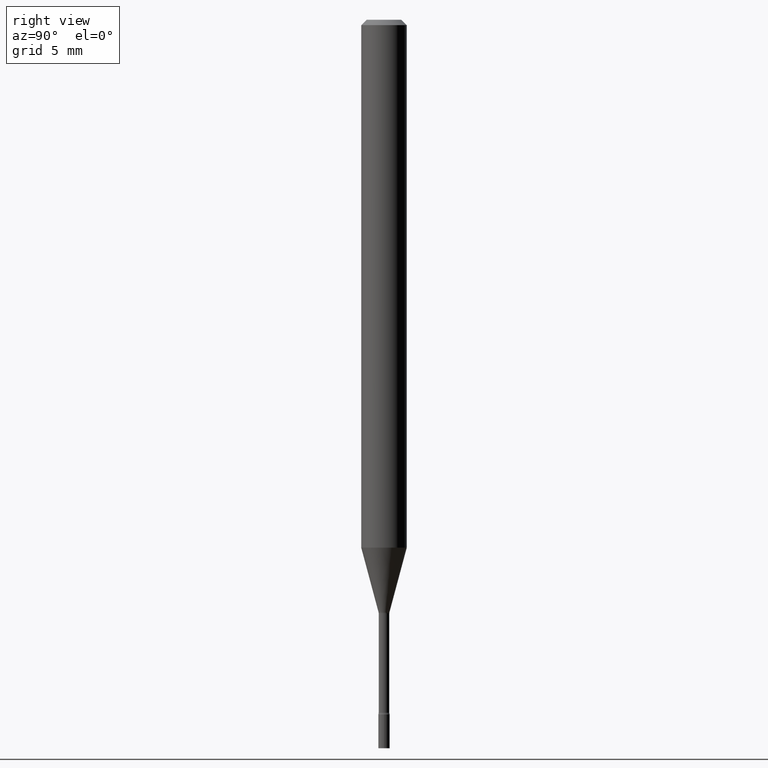
[diagram: clean part render]
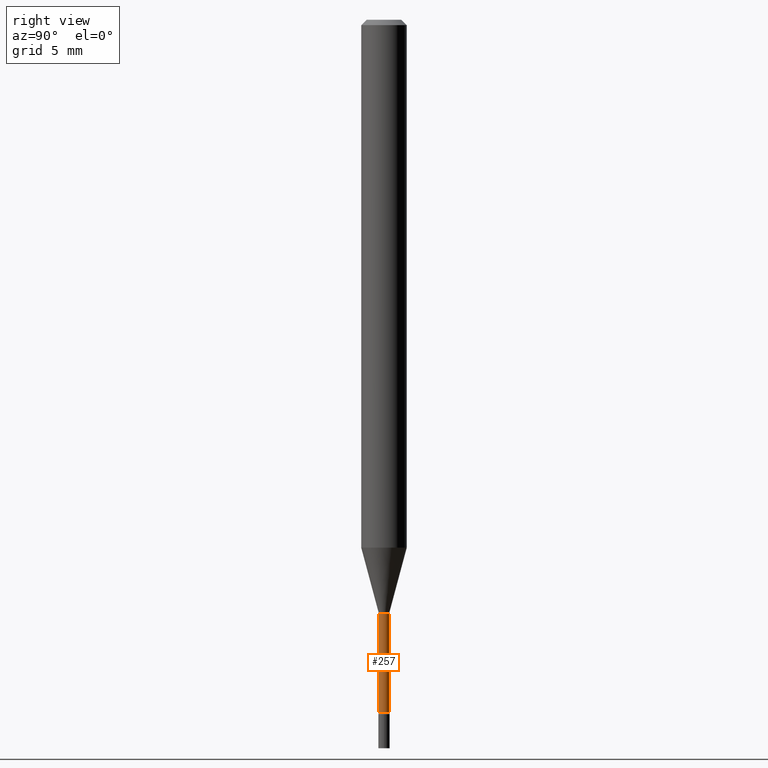
[diagram: same view with one face highlighted and labeled with its STEP entity id]
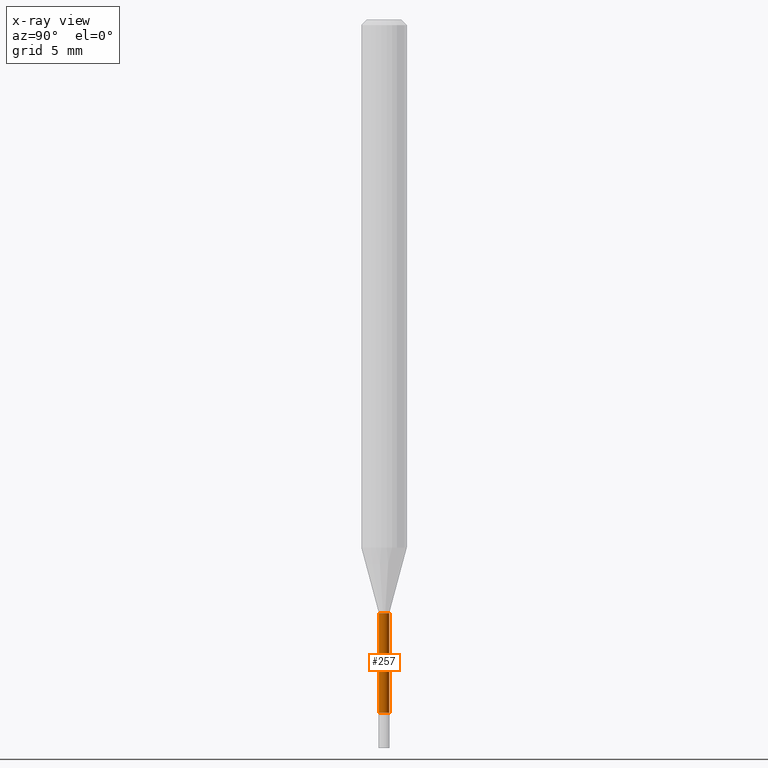
[diagram: x-ray of the same camera — body ghosted, the highlighted face saturated]
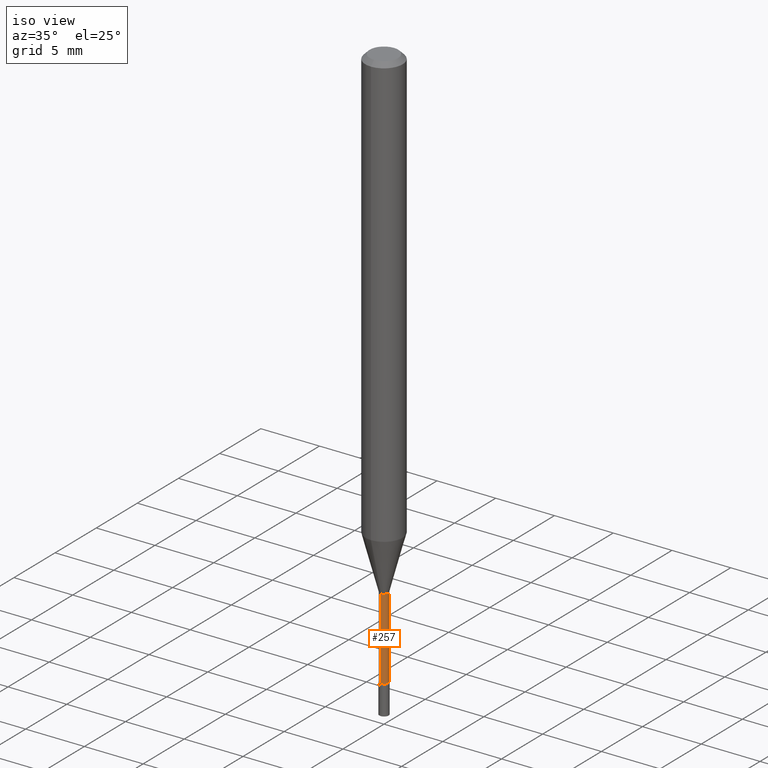
[diagram: same view with one face highlighted and labeled with its STEP entity id]
A machine part, right view. The second image highlights one B-rep face of the part: STEP entity #257.
The next image is the same camera in x-ray: the body ghosted, the highlighted face saturated — about 0% of this face is hidden behind the body in this view.
A second angle (iso view) of the same face is appended — the face is thin or edge-on in the first view.
In plain terms, the highlighted cylindrical surface (edge-blend (fillet) strip) has radius 0.3696 mm, axis along (-0, 0, 1).
Its self-contained STEP definition (entity closure, byte-faithful):
#5 = DIRECTION ( 'NONE',  ( -2.445459087978587807E-29, 3.491495255868048836E-15, 1.000000000000000000 ) ) ;
#11 = CIRCLE ( 'NONE', #241, 0.01455000000000001951 ) ;
#12 = CARTESIAN_POINT ( 'NONE',  ( 1.067590460480017694E-16, 0.01454999999999338246, -1.901746667724196316 ) ) ;
#14 = FACE_OUTER_BOUND ( 'NONE', #407, .T. ) ;
#36 = CARTESIAN_POINT ( 'NONE',  ( 3.986036657179344057E-29, -5.691049237614427224E-15, -1.629974787463811081 ) ) ;
#39 = ORIENTED_EDGE ( 'NONE', *, *, #501, .F. ) ;
#40 = AXIS2_PLACEMENT_3D ( 'NONE', #318, #451, #80 ) ;
#41 = EDGE_CURVE ( 'NONE', #223, #259, #72, .T. ) ;
#72 = LINE ( 'NONE', #434, #513 ) ;
#74 = CARTESIAN_POINT ( 'NONE',  ( -1.016021069602953434E-16, -0.01455000000000569380, -1.629974787463811081 ) ) ;
#80 = DIRECTION ( 'NONE',  ( -6.982962677686266711E-15, -1.000000000000000000, 3.491495255868048836E-15 ) ) ;
#90 = ORIENTED_EDGE ( 'NONE', *, *, #517, .T. ) ;
#97 = VERTEX_POINT ( 'NONE', #12 ) ;
#105 = AXIS2_PLACEMENT_3D ( 'NONE', #36, #187, #516 ) ;
#110 = ORIENTED_EDGE ( 'NONE', *, *, #41, .F. ) ;
#114 = EDGE_CURVE ( 'NONE', #97, #460, #457, .T. ) ;
#128 = CARTESIAN_POINT ( 'NONE',  ( 1.033839680530946418E-16, 0.01455000000000001084, -5.080125597288014936E-17 ) ) ;
#139 = ORIENTED_EDGE ( 'NONE', *, *, #114, .T. ) ;
#167 = CYLINDRICAL_SURFACE ( 'NONE', #40, 0.01455000000000001084 ) ;
#187 = DIRECTION ( 'NONE',  ( -2.445459087978587807E-29, 3.491495255868049230E-15, 1.000000000000000000 ) ) ;
#215 = CARTESIAN_POINT ( 'NONE',  ( -1.016021069602887860E-16, -0.01455000000000666004, -1.901746667724196316 ) ) ;
#223 = VERTEX_POINT ( 'NONE', #215 ) ;
#236 = CARTESIAN_POINT ( 'NONE',  ( 1.033839680531411352E-16, 0.01454999999999430881, -1.629974787463811081 ) ) ;
#241 = AXIS2_PLACEMENT_3D ( 'NONE', #430, #275, #514 ) ;
#257 = ADVANCED_FACE ( 'NONE', ( #14 ), #167, .T. ) ;
#259 = VERTEX_POINT ( 'NONE', #74 ) ;
#275 = DIRECTION ( 'NONE',  ( -2.445459087978587807E-29, 3.491495255868049230E-15, 1.000000000000000000 ) ) ;
#298 = VECTOR ( 'NONE', #5, 39.37007874015748143 ) ;
#318 = CARTESIAN_POINT ( 'NONE',  ( 0.000000000000000000, 0.000000000000000000, 0.000000000000000000 ) ) ;
#362 = DIRECTION ( 'NONE',  ( -2.445459087978587807E-29, 3.491495255868048836E-15, 1.000000000000000000 ) ) ;
#407 = EDGE_LOOP ( 'NONE', ( #90, #139, #39, #110 ) ) ;
#430 = CARTESIAN_POINT ( 'NONE',  ( 4.650643671619131507E-29, -6.639939468221903251E-15, -1.901746667724196316 ) ) ;
#434 = CARTESIAN_POINT ( 'NONE',  ( -1.016021069603352548E-16, -0.01455000000000001084, 5.080125597288014936E-17 ) ) ;
#451 = DIRECTION ( 'NONE',  ( -2.445459087978587807E-29, 3.491495255868049230E-15, 1.000000000000000000 ) ) ;
#457 = LINE ( 'NONE', #128, #298 ) ;
#460 = VERTEX_POINT ( 'NONE', #236 ) ;
#489 = CIRCLE ( 'NONE', #105, 0.01455000000000000217 ) ;
#501 = EDGE_CURVE ( 'NONE', #259, #460, #489, .T. ) ;
#513 = VECTOR ( 'NONE', #362, 39.37007874015748143 ) ;
#514 = DIRECTION ( 'NONE',  ( -6.982962677686265922E-15, -1.000000000000000000, 0.000000000000000000 ) ) ;
#516 = DIRECTION ( 'NONE',  ( -6.982962677686266711E-15, -1.000000000000000000, 0.000000000000000000 ) ) ;
#517 = EDGE_CURVE ( 'NONE', #223, #97, #11, .T. ) ;